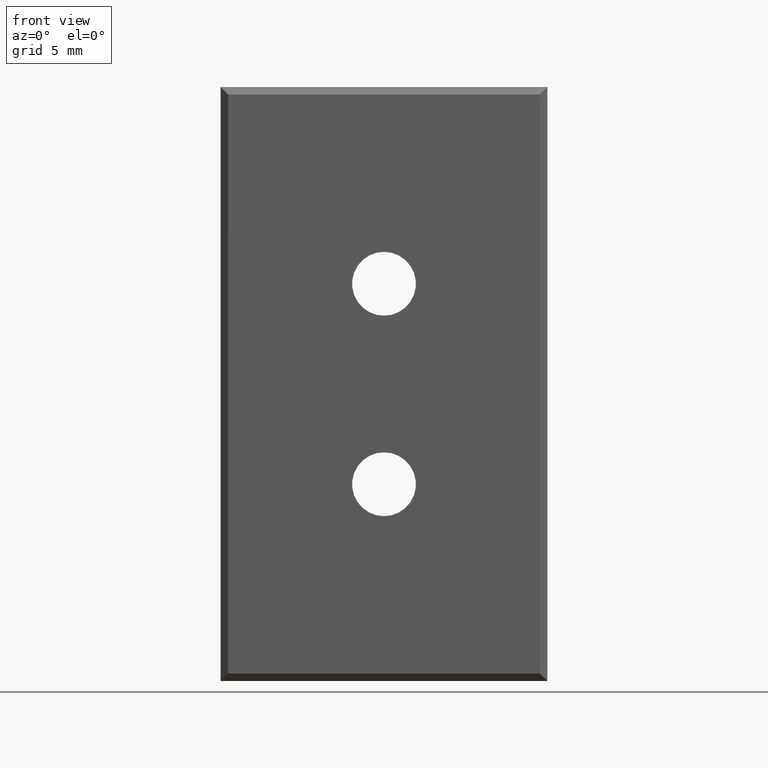
[diagram: clean part render]
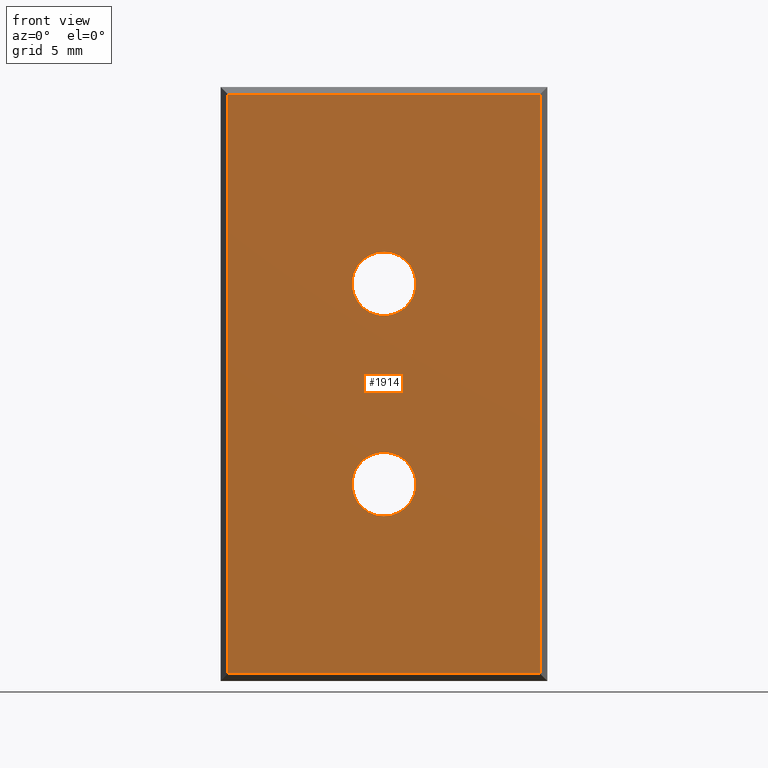
[diagram: same view with one face highlighted and labeled with its STEP entity id]
A machine part, front view. The second image highlights one B-rep face of the part: STEP entity #1914.
In plain terms, the highlighted planar face has unit normal (0, -1, 0).
Its self-contained STEP definition (entity closure, byte-faithful):
#41 = EDGE_LOOP ( 'NONE', ( #4506, #4500 ) ) ;
#42 = EDGE_LOOP ( 'NONE', ( #3247, #3230, #3246, #3240 ) ) ;
#280 = EDGE_LOOP ( 'NONE', ( #4543, #3250 ) ) ;
#427 = VERTEX_POINT ( 'NONE', #4572 ) ;
#484 = VERTEX_POINT ( 'NONE', #4624 ) ;
#485 = VERTEX_POINT ( 'NONE', #4638 ) ;
#514 = VERTEX_POINT ( 'NONE', #4631 ) ;
#639 = VERTEX_POINT ( 'NONE', #4758 ) ;
#660 = VERTEX_POINT ( 'NONE', #4837 ) ;
#670 = VERTEX_POINT ( 'NONE', #4863 ) ;
#676 = VERTEX_POINT ( 'NONE', #4849 ) ;
#1060 = EDGE_CURVE ( 'NONE', #485, #514, #1577, .T. ) ;
#1071 = EDGE_CURVE ( 'NONE', #427, #485, #1633, .T. ) ;
#1110 = EDGE_CURVE ( 'NONE', #484, #427, #1854, .T. ) ;
#1117 = EDGE_CURVE ( 'NONE', #676, #639, #3155, .T. ) ;
#1129 = EDGE_CURVE ( 'NONE', #514, #484, #2001, .T. ) ;
#1143 = EDGE_CURVE ( 'NONE', #660, #670, #2486, .T. ) ;
#1505 = EDGE_CURVE ( 'NONE', #670, #660, #6762, .T. ) ;
#1528 = DIRECTION ( 'NONE',  ( 0.0000000000000000000, -0.0000000000000000000, -1.000000000000000000 ) ) ;
#1534 = EDGE_CURVE ( 'NONE', #639, #676, #6743, .T. ) ;
#1577 = LINE ( 'NONE', #1585, #3085 ) ;
#1585 = CARTESIAN_POINT ( 'NONE',  ( 0.5000000000000004400, 0.0000000000000000000, -40.00000000000000000 ) ) ;
#1633 = LINE ( 'NONE', #1675, #3150 ) ;
#1639 = DIRECTION ( 'NONE',  ( -1.000000000000000000, -0.0000000000000000000, -0.0000000000000000000 ) ) ;
#1675 = CARTESIAN_POINT ( 'NONE',  ( 0.0000000000000000000, 0.0000000000000000000, -0.5000000000000004400 ) ) ;
#1852 = DIRECTION ( 'NONE',  ( 0.0000000000000000000, 0.0000000000000000000, 1.000000000000000000 ) ) ;
#1854 = LINE ( 'NONE', #1905, #3146 ) ;
#1856 = CARTESIAN_POINT ( 'NONE',  ( 11.00000000000000000, 0.0000000000000000000, -26.75000000000000400 ) ) ;
#1883 = DIRECTION ( 'NONE',  ( 0.0000000000000000000, 1.000000000000000000, 0.0000000000000000000 ) ) ;
#1905 = CARTESIAN_POINT ( 'NONE',  ( 21.50000000000000000, 0.0000000000000000000, -40.00000000000000000 ) ) ;
#1909 = DIRECTION ( 'NONE',  ( -0.0000000000000000000, 0.0000000000000000000, 1.000000000000000000 ) ) ;
#1914 = ADVANCED_FACE ( 'NONE', ( #6066, #6063, #6078 ), #6101, .T. ) ;
#1948 = CARTESIAN_POINT ( 'NONE',  ( 0.0000000000000000000, 0.0000000000000000000, -39.50000000000000000 ) ) ;
#2001 = LINE ( 'NONE', #1948, #3208 ) ;
#2014 = DIRECTION ( 'NONE',  ( 1.000000000000000000, 0.0000000000000000000, 0.0000000000000000000 ) ) ;
#2028 = DIRECTION ( 'NONE',  ( 0.0000000000000000000, 1.000000000000000000, 0.0000000000000000000 ) ) ;
#2081 = CARTESIAN_POINT ( 'NONE',  ( 11.00000000000014200, 0.0000000000000000000, -13.25000000000000400 ) ) ;
#2083 = DIRECTION ( 'NONE',  ( 0.0000000000000000000, 0.0000000000000000000, 1.000000000000000000 ) ) ;
#2486 = CIRCLE ( 'NONE', #2519, 2.150000000000000800 ) ;
#2519 = AXIS2_PLACEMENT_3D ( 'NONE', #2081, #2028, #2083 ) ;
#3085 = VECTOR ( 'NONE', #1528, 1000.000000000000000 ) ;
#3146 = VECTOR ( 'NONE', #1909, 1000.000000000000000 ) ;
#3150 = VECTOR ( 'NONE', #1639, 1000.000000000000000 ) ;
#3154 = AXIS2_PLACEMENT_3D ( 'NONE', #1856, #1883, #1852 ) ;
#3155 = CIRCLE ( 'NONE', #3154, 2.149999999999999000 ) ;
#3208 = VECTOR ( 'NONE', #2014, 1000.000000000000000 ) ;
#3230 = ORIENTED_EDGE ( 'NONE', *, *, #1129, .T. ) ;
#3240 = ORIENTED_EDGE ( 'NONE', *, *, #1071, .T. ) ;
#3246 = ORIENTED_EDGE ( 'NONE', *, *, #1110, .T. ) ;
#3247 = ORIENTED_EDGE ( 'NONE', *, *, #1060, .T. ) ;
#3250 = ORIENTED_EDGE ( 'NONE', *, *, #1505, .T. ) ;
#4500 = ORIENTED_EDGE ( 'NONE', *, *, #1534, .T. ) ;
#4506 = ORIENTED_EDGE ( 'NONE', *, *, #1117, .T. ) ;
#4543 = ORIENTED_EDGE ( 'NONE', *, *, #1143, .T. ) ;
#4572 = CARTESIAN_POINT ( 'NONE',  ( 21.50000000000000400, 1.301042606982605300E-015, -0.5000000000000004400 ) ) ;
#4624 = CARTESIAN_POINT ( 'NONE',  ( 21.50000000000000400, 4.042405482706827300E-015, -39.50000000000002100 ) ) ;
#4631 = CARTESIAN_POINT ( 'NONE',  ( 0.4999999999999990600, 1.535953077687797900E-015, -39.50000000000001400 ) ) ;
#4638 = CARTESIAN_POINT ( 'NONE',  ( 0.5000000000000004400, 4.517509052022935300E-017, -0.5000000000000004400 ) ) ;
#4758 = CARTESIAN_POINT ( 'NONE',  ( 11.00000000000000000, 0.0000000000000000000, -28.90000000000000200 ) ) ;
#4837 = CARTESIAN_POINT ( 'NONE',  ( 11.00000000000014200, 0.0000000000000000000, -11.10000000000000100 ) ) ;
#4849 = CARTESIAN_POINT ( 'NONE',  ( 11.00000000000000000, 0.0000000000000000000, -24.60000000000000500 ) ) ;
#4863 = CARTESIAN_POINT ( 'NONE',  ( 11.00000000000014200, 0.0000000000000000000, -15.40000000000000400 ) ) ;
#6063 = FACE_BOUND ( 'NONE', #41, .T. ) ;
#6066 = FACE_OUTER_BOUND ( 'NONE', #42, .T. ) ;
#6078 = FACE_BOUND ( 'NONE', #280, .T. ) ;
#6101 = PLANE ( 'NONE',  #7029 ) ;
#6108 = DIRECTION ( 'NONE',  ( 0.0000000000000000000, -1.000000000000000000, 0.0000000000000000000 ) ) ;
#6111 = CARTESIAN_POINT ( 'NONE',  ( 0.0000000000000000000, 0.0000000000000000000, -40.00000000000000000 ) ) ;
#6136 = DIRECTION ( 'NONE',  ( 0.0000000000000000000, -0.0000000000000000000, -1.000000000000000000 ) ) ;
#6743 = CIRCLE ( 'NONE', #6756, 2.149999999999999000 ) ;
#6748 = AXIS2_PLACEMENT_3D ( 'NONE', #7638, #7632, #7642 ) ;
#6756 = AXIS2_PLACEMENT_3D ( 'NONE', #7687, #7647, #7675 ) ;
#6762 = CIRCLE ( 'NONE', #6748, 2.150000000000000800 ) ;
#7029 = AXIS2_PLACEMENT_3D ( 'NONE', #6111, #6108, #6136 ) ;
#7632 = DIRECTION ( 'NONE',  ( 0.0000000000000000000, 1.000000000000000000, 0.0000000000000000000 ) ) ;
#7638 = CARTESIAN_POINT ( 'NONE',  ( 11.00000000000014200, 0.0000000000000000000, -13.25000000000000400 ) ) ;
#7642 = DIRECTION ( 'NONE',  ( 0.0000000000000000000, 0.0000000000000000000, 1.000000000000000000 ) ) ;
#7647 = DIRECTION ( 'NONE',  ( 0.0000000000000000000, 1.000000000000000000, 0.0000000000000000000 ) ) ;
#7675 = DIRECTION ( 'NONE',  ( 0.0000000000000000000, 0.0000000000000000000, 1.000000000000000000 ) ) ;
#7687 = CARTESIAN_POINT ( 'NONE',  ( 11.00000000000000000, 0.0000000000000000000, -26.75000000000000400 ) ) ;